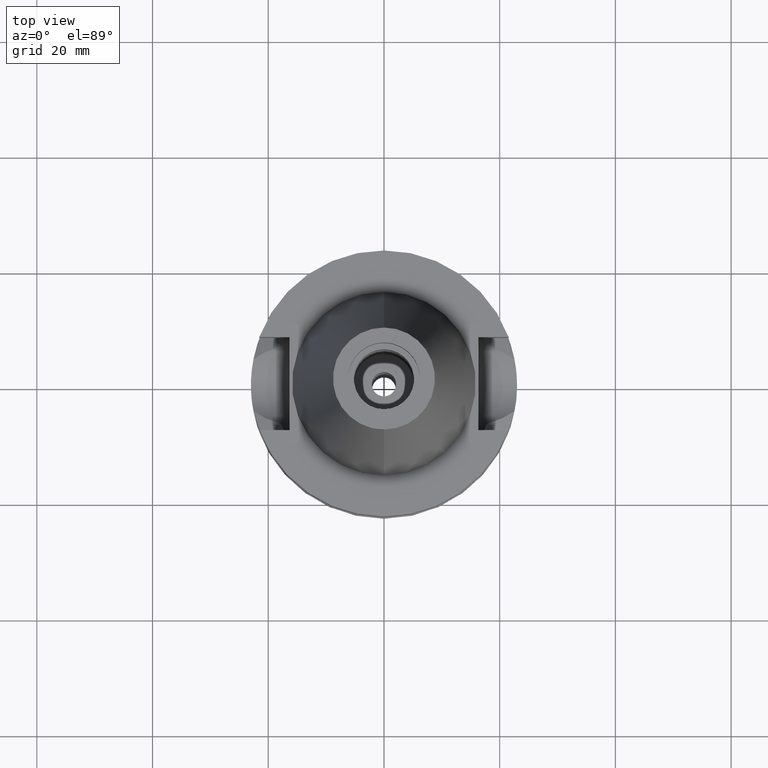
[diagram: clean part render]
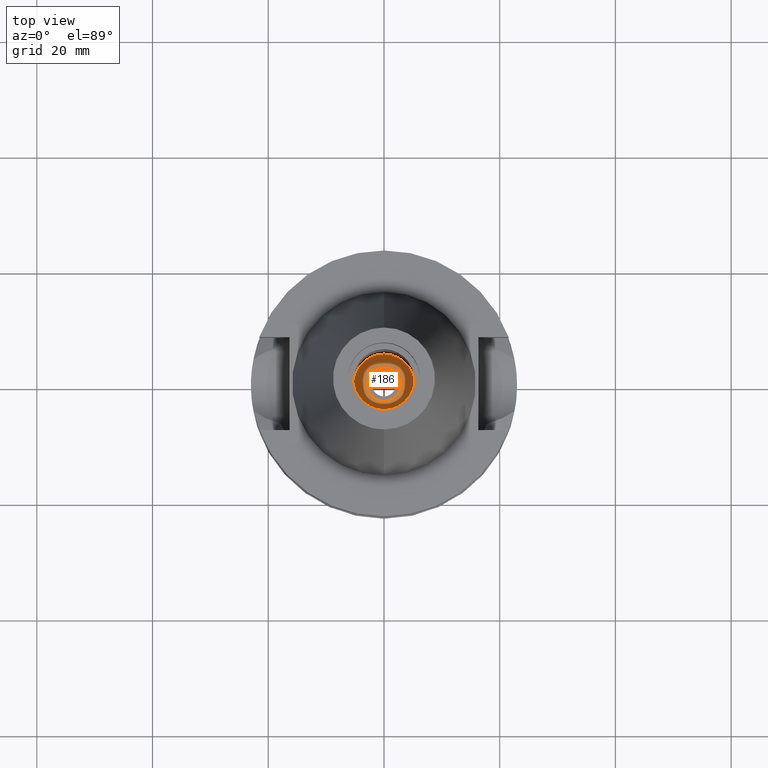
[diagram: same view with one face highlighted and labeled with its STEP entity id]
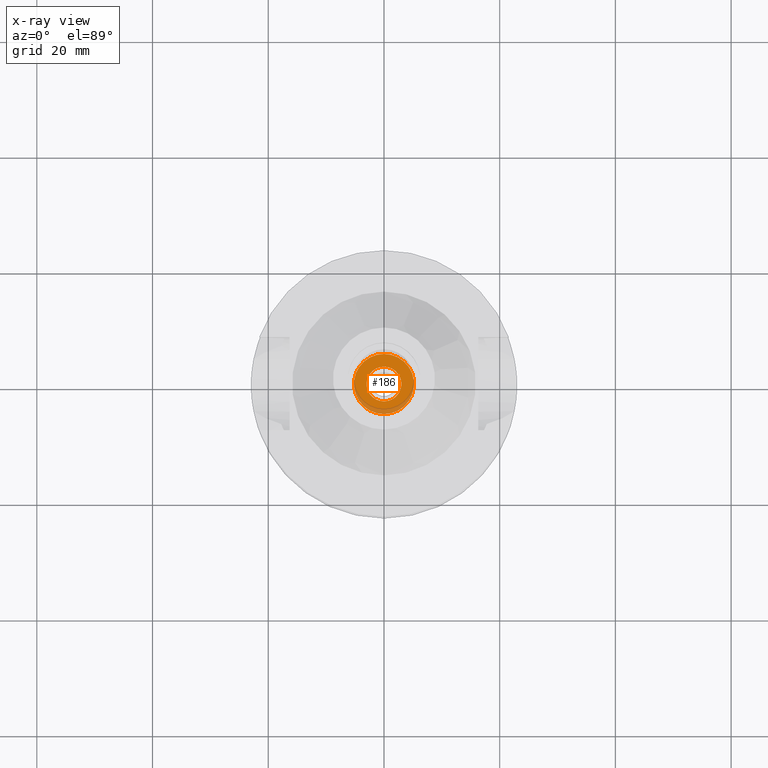
[diagram: x-ray of the same camera — body ghosted, the highlighted face saturated]
A machine part, top view. The second image highlights one B-rep face of the part: STEP entity #186.
The next image is the same camera in x-ray: the body ghosted, the highlighted face saturated — about 15% of this face is hidden behind the body in this view.
In plain terms, the highlighted planar face has unit normal (0, 0, -1).
Its self-contained STEP definition (entity closure, byte-faithful):
#43 = DIRECTION ( 'NONE',  ( 0.0000000000000000000, -1.000000000000000000, 0.0000000000000000000 ) ) ;
#154 = VERTEX_POINT ( 'NONE', #2137 ) ;
#186 = ADVANCED_FACE ( 'NONE', ( #1894, #2340 ), #1469, .F. ) ;
#191 = EDGE_CURVE ( 'NONE', #1152, #2710, #1982, .T. ) ;
#377 = ORIENTED_EDGE ( 'NONE', *, *, #1736, .F. ) ;
#437 = AXIS2_PLACEMENT_3D ( 'NONE', #2782, #1643, #1204 ) ;
#550 = DIRECTION ( 'NONE',  ( 0.0000000000000000000, 0.0000000000000000000, -1.000000000000000000 ) ) ;
#610 = CARTESIAN_POINT ( 'NONE',  ( 0.0000000000000000000, -3.000000000000000000, -6.599999999999999645 ) ) ;
#641 = CARTESIAN_POINT ( 'NONE',  ( 0.0000000000000000000, -5.200000000000000178, -6.599999999999999645 ) ) ;
#645 = VERTEX_POINT ( 'NONE', #610 ) ;
#925 = EDGE_LOOP ( 'NONE', ( #2485, #1554 ) ) ;
#988 = EDGE_CURVE ( 'NONE', #154, #645, #1538, .T. ) ;
#1008 = AXIS2_PLACEMENT_3D ( 'NONE', #2947, #1113, #1311 ) ;
#1106 = AXIS2_PLACEMENT_3D ( 'NONE', #2339, #2296, #43 ) ;
#1113 = DIRECTION ( 'NONE',  ( 0.0000000000000000000, 0.0000000000000000000, 1.000000000000000000 ) ) ;
#1152 = VERTEX_POINT ( 'NONE', #641 ) ;
#1190 = DIRECTION ( 'NONE',  ( 0.0000000000000000000, 0.0000000000000000000, -1.000000000000000000 ) ) ;
#1204 = DIRECTION ( 'NONE',  ( 0.0000000000000000000, -1.000000000000000000, 0.0000000000000000000 ) ) ;
#1311 = DIRECTION ( 'NONE',  ( 0.0000000000000000000, 1.000000000000000000, 0.0000000000000000000 ) ) ;
#1343 = EDGE_CURVE ( 'NONE', #2710, #1152, #2839, .T. ) ;
#1444 = CIRCLE ( 'NONE', #1106, 3.000000000000000000 ) ;
#1469 = PLANE ( 'NONE',  #2131 ) ;
#1538 = CIRCLE ( 'NONE', #1008, 3.000000000000000000 ) ;
#1554 = ORIENTED_EDGE ( 'NONE', *, *, #191, .F. ) ;
#1556 = EDGE_LOOP ( 'NONE', ( #1875, #377 ) ) ;
#1643 = DIRECTION ( 'NONE',  ( 0.0000000000000000000, 0.0000000000000000000, -1.000000000000000000 ) ) ;
#1687 = DIRECTION ( 'NONE',  ( 0.0000000000000000000, -1.000000000000000000, 0.0000000000000000000 ) ) ;
#1689 = CARTESIAN_POINT ( 'NONE',  ( 0.0000000000000000000, 1.881302412850000052E-14, -6.599999999999999645 ) ) ;
#1736 = EDGE_CURVE ( 'NONE', #645, #154, #1444, .T. ) ;
#1779 = AXIS2_PLACEMENT_3D ( 'NONE', #1689, #550, #2869 ) ;
#1875 = ORIENTED_EDGE ( 'NONE', *, *, #988, .F. ) ;
#1894 = FACE_OUTER_BOUND ( 'NONE', #925, .T. ) ;
#1982 = CIRCLE ( 'NONE', #437, 5.200000000000000178 ) ;
#2131 = AXIS2_PLACEMENT_3D ( 'NONE', #2814, #1190, #1687 ) ;
#2137 = CARTESIAN_POINT ( 'NONE',  ( 0.0000000000000000000, 3.000000000000000000, -6.599999999999999645 ) ) ;
#2296 = DIRECTION ( 'NONE',  ( 0.0000000000000000000, 0.0000000000000000000, 1.000000000000000000 ) ) ;
#2339 = CARTESIAN_POINT ( 'NONE',  ( 0.0000000000000000000, 1.881302412850000052E-14, -6.599999999999999645 ) ) ;
#2340 = FACE_BOUND ( 'NONE', #1556, .T. ) ;
#2485 = ORIENTED_EDGE ( 'NONE', *, *, #1343, .F. ) ;
#2710 = VERTEX_POINT ( 'NONE', #2875 ) ;
#2782 = CARTESIAN_POINT ( 'NONE',  ( 0.0000000000000000000, 1.881302412850000052E-14, -6.599999999999999645 ) ) ;
#2814 = CARTESIAN_POINT ( 'NONE',  ( 0.0000000000000000000, 1.143820110403999983E-14, -6.599999999999999645 ) ) ;
#2839 = CIRCLE ( 'NONE', #1779, 5.200000000000000178 ) ;
#2869 = DIRECTION ( 'NONE',  ( 0.0000000000000000000, 1.000000000000000000, 0.0000000000000000000 ) ) ;
#2875 = CARTESIAN_POINT ( 'NONE',  ( 0.0000000000000000000, 5.200000000000000178, -6.599999999999999645 ) ) ;
#2947 = CARTESIAN_POINT ( 'NONE',  ( 0.0000000000000000000, 1.881302412850000052E-14, -6.599999999999999645 ) ) ;